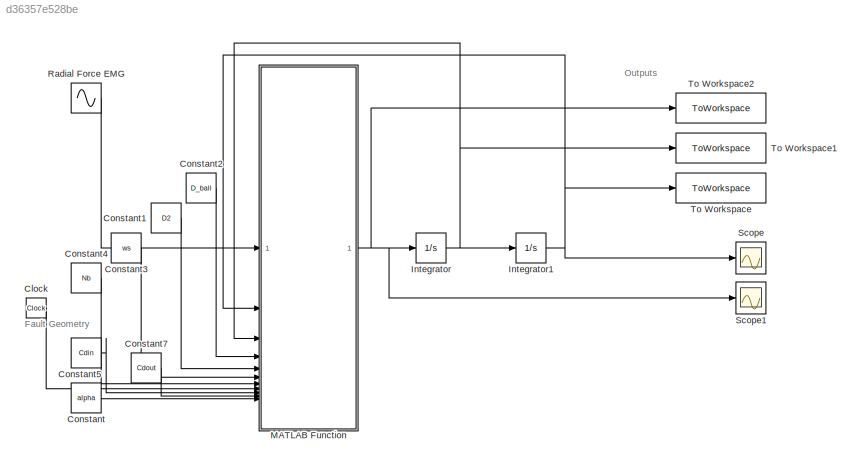
MODEL slx_d36357e528be
KIND model
CONFIG AbsTol = auto
CONFIG EnableMultiTasking = off
CONFIG FixedStep = Ts
CONFIG MaxStep = auto
CONFIG MinStep = auto
CONFIG RelTol = 1e-3
CONFIG SampleTimeConstraint = Unconstrained
CONFIG SolverName = ode4
CONFIG StartTime = 0.0
CONFIG StopTime = Tend
BLOCK [Clock] Clock
BLOCK [Constant] Constant
  Value = alpha
BLOCK [Constant] Constant1
  Value = D2
BLOCK [Constant] Constant2
  Value = D_ball
BLOCK [Constant] Constant3
  Value = ws
BLOCK [Constant] Constant4
  Value = Nb
BLOCK [Constant] Constant5
  Value = Cdin
BLOCK [Constant] Constant7
  Value = Cdout
BLOCK [Integrator] Integrator
  InitialCondition = v0
BLOCK [Integrator] Integrator1
  InitialCondition = u0
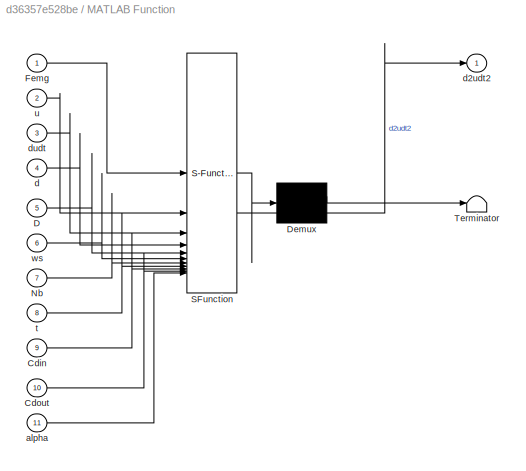
BLOCK [SubSystem] MATLAB Function
  ErrorFcn = Stateflow.Translate.translate
  PermitHierarchicalResolution = ExplicitOnly
  SFBlockType = MATLAB Function
  TreatAsAtomicUnit = on
BLOCK [Demux] MATLAB Function/ Demux 
  Outputs = 1
BLOCK [S-Function] MATLAB Function/ SFunction 
  EnableBusSupport = on
  FunctionName = sf_sfun
  Parameters = g,param
  PortCounts = [11 2]
  SFcnIsStateOwnerBlock = off
  SFunctionDeploymentMode = off
  Tag = Stateflow S-Function 2
BLOCK [Terminator] MATLAB Function/ Terminator 
BLOCK [Inport] MATLAB Function/Cdin
  Port = 9
BLOCK [Inport] MATLAB Function/Cdout
  Port = 10
BLOCK [Inport] MATLAB Function/D
  Port = 5
BLOCK [Inport] MATLAB Function/Femg
BLOCK [Inport] MATLAB Function/Nb
  Port = 7
BLOCK [Inport] MATLAB Function/alpha
  Port = 11
BLOCK [Inport] MATLAB Function/d
  Port = 4
BLOCK [Outport] MATLAB Function/d2udt2
BLOCK [Inport] MATLAB Function/dudt
  Port = 3
BLOCK [Inport] MATLAB Function/t
  Port = 8
BLOCK [Inport] MATLAB Function/u
  Port = 2
BLOCK [Inport] MATLAB Function/ws
  Port = 6
BLOCK [Sin] Radial Force EMG
  Amplitude = F
  Frequency = ws
  SampleTime = Ts
BLOCK [Scope] Scope
  Floating = off
  NumInputPorts = 1
  ScopeSpecificationString = Simulink.scopes.TimeScopeBlockCfg('CurrentConfiguration', extmgr.ConfigurationSet(extmgr.Configuration('Core','General UI',true),extmgr.Configuration('Core','Source UI',true),extmgr.Configuration('Sources','WiredSimulink',true),extmgr.Configuration('Visuals','Time Domain',true,'SerializedDisplays',{struct('MinYLimReal','-0.00000026','MaxYLimReal','0.00000023','YLabelReal','','MinYLimMag','0.000000...<+1655ch>
BLOCK [Scope] Scope1
  Floating = off
  NumInputPorts = 1
  ScopeSpecificationString = Simulink.scopes.TimeScopeBlockCfg('CurrentConfiguration', extmgr.ConfigurationSet(extmgr.Configuration('Core','General UI',true),extmgr.Configuration('Core','Source UI',true),extmgr.Configuration('Sources','WiredSimulink',true,'DataLoggingVariableName','ScopeData1'),extmgr.Configuration('Visuals','Time Domain',true,'SerializedDisplays',{struct('MinYLimReal','-491766.17901','MaxYLimReal','495790.77...<+1721ch>
BLOCK [ToWorkspace] To Workspace
  FixptAsFi = on
  MaxDataPoints = inf
  SampleTime = -1
  SaveFormat = Timeseries
  VariableName = pos
BLOCK [ToWorkspace] To Workspace1
  FixptAsFi = on
  MaxDataPoints = inf
  SampleTime = -1
  SaveFormat = Timeseries
  VariableName = speed
BLOCK [ToWorkspace] To Workspace2
  FixptAsFi = on
  MaxDataPoints = inf
  SampleTime = -1
  SaveFormat = Timeseries
  VariableName = acc
ANNOTATION (root): Fault Geometry
ANNOTATION (root): Outputs
LINE Clock:1 -> MATLAB Function:8
LINE Constant1:1 -> MATLAB Function:5
LINE Constant2:1 -> MATLAB Function:4
LINE Constant3:1 -> MATLAB Function:6
LINE Constant4:1 -> MATLAB Function:7
LINE Constant5:1 -> MATLAB Function:9
LINE Constant7:1 -> MATLAB Function:10
LINE Constant:1 -> MATLAB Function:11
NET Integrator1:1 -> MATLAB Function:2, Scope:1, To Workspace:1
NET Integrator:1 -> Integrator1:1, MATLAB Function:3, To Workspace1:1
NET MATLAB Function:1 -> Integrator:1, Scope1:1, To Workspace2:1
LINE Radial Force EMG:1 -> MATLAB Function:1
note: NET lines group one-source signal fan-out (src -> all destinations, sorted); 1:1 wires keep LINE
CHART MATLAB Function states=1 transitions=1
  STATE_LABEL 'eML_blk_kernel()'
  STATE_LABEL 'SCRIPT:\nfunction d2udt2 = bearing_dynamic(Femg, u, dudt, param, g, d, D, ws, Nb, t, Cdin, Cdout, alpha)\n\n    % Inverse mass matrix\n    Minv = diag(1 ./ param.m);\n    \n    % Calculate angular position of the second ball\n    wc = ws / 2 * (1 - d / D);\n    theta0 = 0.01;  % Initial angle for second ball\n    theta = mod(2 * pi * (2 - 1) / Nb + wc * t + theta0, 2 * pi);\n    \n    % Determine displacemen...<+1738ch>'
CHART  states=0 transitions=0
